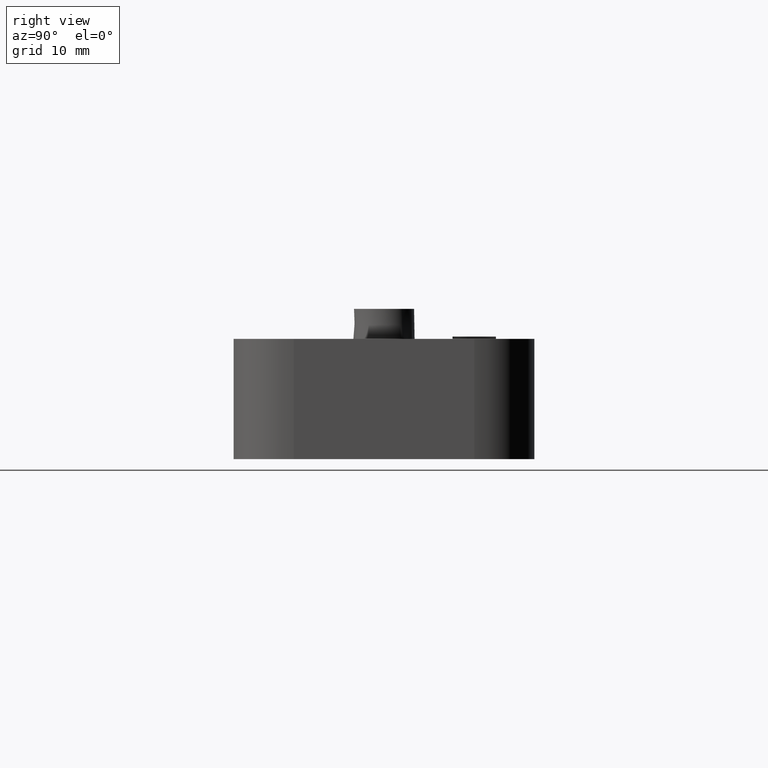
[diagram: clean part render]
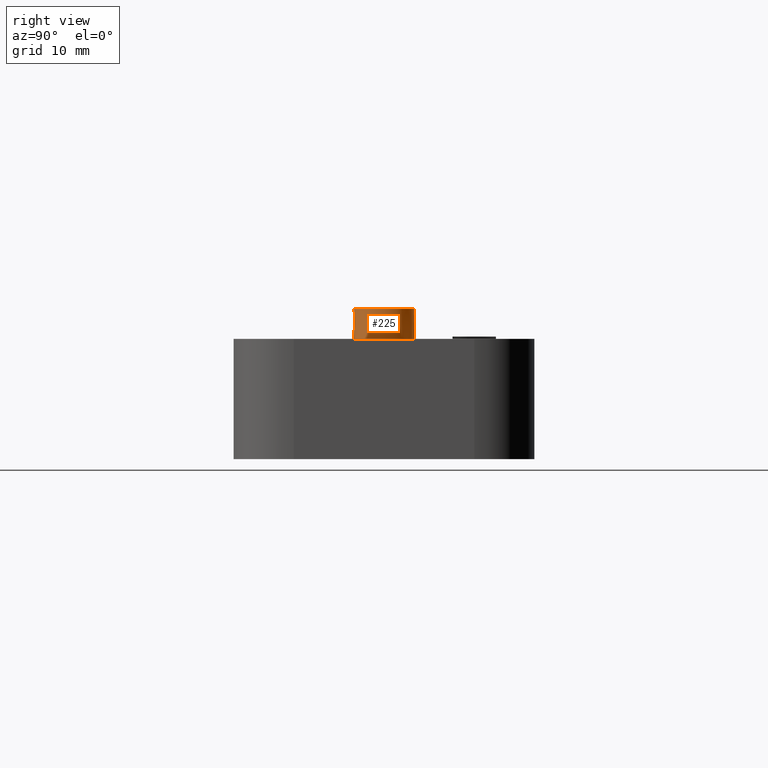
[diagram: same view with one face highlighted and labeled with its STEP entity id]
A machine part, right view. The second image highlights one B-rep face of the part: STEP entity #225.
In plain terms, the highlighted conical surface has half-angle 1 deg.
Its self-contained STEP definition (entity closure, byte-faithful):
#225 = ADVANCED_FACE( '', ( #725, #726 ), #727, .T. );
#725 = FACE_OUTER_BOUND( '', #1377, .T. );
#726 = FACE_BOUND( '', #1378, .T. );
#727 = CONICAL_SURFACE( '', #1379, 2.50000000000000, 0.0174532925199433 );
#1377 = EDGE_LOOP( '', ( #3049 ) );
#1378 = EDGE_LOOP( '', ( #3050 ) );
#1379 = AXIS2_PLACEMENT_3D( '', #3051, #3052, #3053 );
#3049 = ORIENTED_EDGE( '', *, *, #4128, .F. );
#3050 = ORIENTED_EDGE( '', *, *, #4771, .T. );
#3051 = CARTESIAN_POINT( '', ( 19.5000000000000, 2.87957320748572E-015, 12.5000000000000 ) );
#3052 = DIRECTION( '', ( 0.000000000000000, -6.12303176911189E-017, -1.00000000000000 ) );
#3053 = DIRECTION( '', ( 0.000000000000000, 1.00000000000000, -6.12303176911189E-017 ) );
#4128 = EDGE_CURVE( '', #4908, #4908, #4909, .T. );
#4771 = EDGE_CURVE( '', #6038, #6038, #6039, .T. );
#4908 = VERTEX_POINT( '', #6191 );
#4909 = CIRCLE( '', #6192, 2.54363766232055 );
#6038 = VERTEX_POINT( '', #7954 );
#6039 = CIRCLE( '', #7955, 2.50000000000000 );
#6191 = CARTESIAN_POINT( '', ( 19.5000000000000, 2.54363766232055, 10.0000000000000 ) );
#6192 = AXIS2_PLACEMENT_3D( '', #8178, #8179, #8180 );
#7954 = CARTESIAN_POINT( '', ( 22.0000000000000, 3.03264900171352E-015, 12.5000000000000 ) );
#7955 = AXIS2_PLACEMENT_3D( '', #8841, #8842, #8843 );
#8178 = CARTESIAN_POINT( '', ( 19.5000000000000, 2.72649741325792E-015, 10.0000000000000 ) );
#8179 = DIRECTION( '', ( 0.000000000000000, -6.12303176911189E-017, -1.00000000000000 ) );
#8180 = DIRECTION( '', ( 0.000000000000000, 1.00000000000000, -6.12303176911189E-017 ) );
#8841 = CARTESIAN_POINT( '', ( 19.5000000000000, 2.87957320748572E-015, 12.5000000000000 ) );
#8842 = DIRECTION( '', ( -4.37905770101505E-049, -6.12303176911189E-017, -1.00000000000000 ) );
#8843 = DIRECTION( '', ( 1.00000000000000, 6.12303176911188E-017, -3.74915180455534E-033 ) );